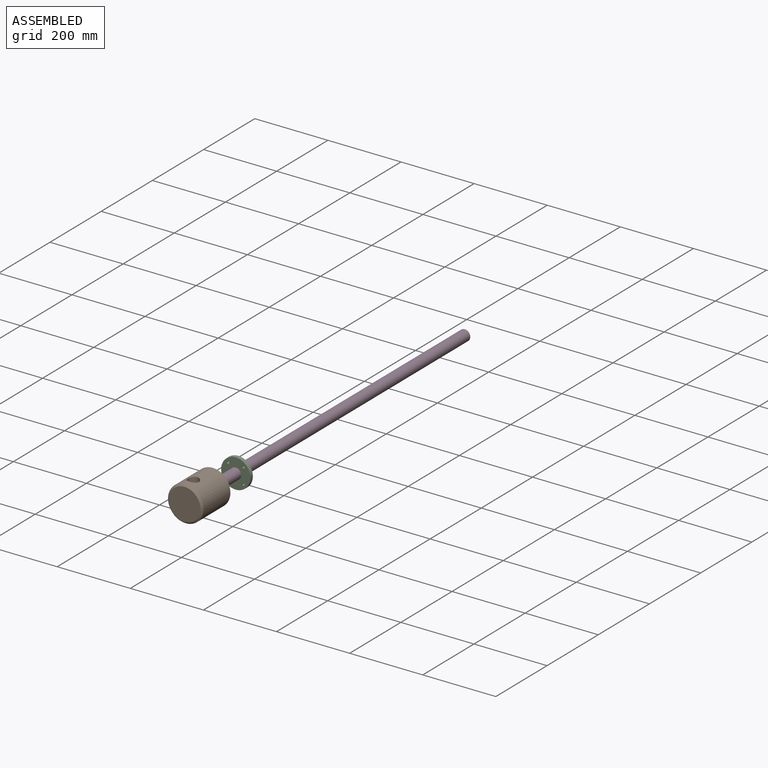
[diagram: assembled view]
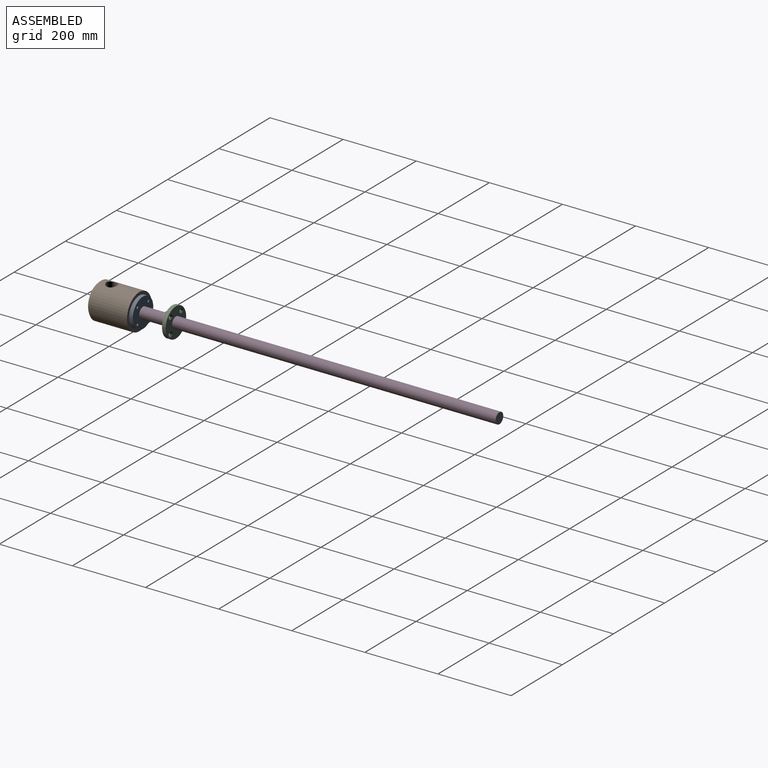
[diagram: assembled view, second angle]
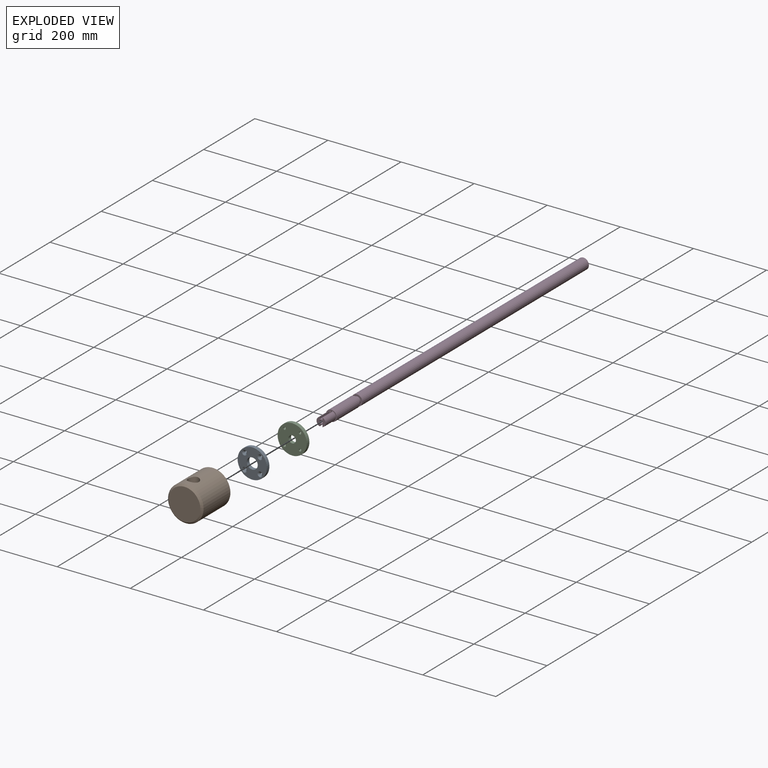
[diagram: exploded view]
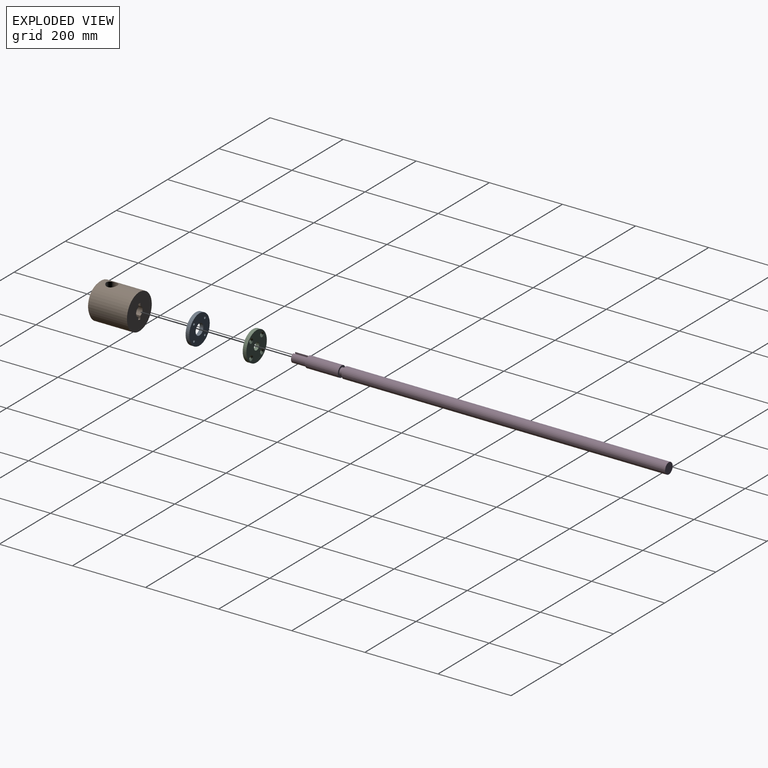
[diagram: exploded view, second angle]
ASSEMBLY  parts=4 mates=3
PART A: 12 faces, bbox 80x10x80 mm
  f0: cylinder r=15mm len=30mm, axis (0,1,0), area 942.5mm2, adj f2,f3
  f1: cylinder r=40mm len=80mm, axis (0,1,0), area 2513.3mm2, adj f2,f3
  f2: plane 80x80mm, normal (0,-1,0), area 3729.2mm2, adj f0,f1,f5,f7,f9,f11
  f3: plane 80x80mm, normal (0,1,0), area 4182.8mm2, adj f0,f1,f4,f6,f8,f10
  f4: cylinder r=3.3mm len=6.6mm, axis (0,-1,0), area 133.6mm2, adj f3,f5
  f5: cone r=3.3mm half-angle=45deg, axis (0,-1,0), area 160.4mm2, adj f2,f4
  f6: cylinder r=3.3mm len=6.6mm, axis (0,-1,0), area 133.6mm2, adj f3,f7
  f7: cone r=3.3mm half-angle=45deg, axis (0,-1,0), area 160.4mm2, adj f2,f6
  f8: cylinder r=3.3mm len=6.6mm, axis (0,-1,0), area 133.6mm2, adj f3,f9
  f9: cone r=3.3mm half-angle=45deg, axis (0,-1,0), area 160.4mm2, adj f2,f8
  f10: cylinder r=3.3mm len=6.6mm, axis (0,-1,0), area 133.6mm2, adj f3,f11
  f11: cone r=3.3mm half-angle=45deg, axis (0,-1,0), area 160.4mm2, adj f2,f10
PART B: 15 faces, bbox 97x110x97 mm
  f0: plane 97x97mm, normal (0,1,0), area 6775.5mm2, adj f1,f2,f7,f9,f10,f11,f12,f13
  f1: cylinder r=12.5mm len=45mm, axis (0,1,0), area 1400.7mm2, adj f0,f6,f10,f13
  f2: cylinder r=48.5mm len=105mm, axis (0,1,0), area 30566mm2, adj f0,f5,f8
  f3: cylinder r=5mm len=15.86mm, axis (0,1,0), area 484.6mm2, adj f6,f8
  f4: plane 87x87mm, normal (0,-1,0), area 5944.7mm2, adj f5
  f5: cone r=43.5mm half-angle=45deg, axis (0,1,0), area 2043.7mm2, adj f2,f4
  f6: plane 40x25mm, normal (0,1,0), area 535.8mm2, adj f1,f3,f7,f9,f10,f11,f12,f13
  f7: cylinder r=12.5mm len=45mm, axis (0,1,0), area 1400.7mm2, adj f0,f6,f9,f12
  f8: cylinder r=15mm len=97mm, axis (0,0,-1), area 8839.6mm2, adj f2,f3
  f9: plane 45x8.16mm, normal (-1,0,0), area 367.1mm2, adj f0,f6,f7,f11
  f10: plane 45x8.16mm, normal (1,0,0), area 367.1mm2, adj f0,f1,f6,f11
  f11: plane 45x8mm, normal (0,0,-1), area 360mm2, adj f0,f6,f9,f10
  f12: plane 45x8.16mm, normal (-1,0,0), area 367.1mm2, adj f0,f6,f7,f14
  f13: plane 45x8.16mm, normal (1,0,0), area 367.1mm2, adj f0,f1,f6,f14
  f14: plane 45x8mm, normal (0,0,1), area 360mm2, adj f0,f6,f12,f13
PART C: 12 faces, bbox 80x10x80 mm
  f0: cylinder r=40mm len=80mm, axis (0,1,0), area 2513.3mm2, adj f1,f2
  f1: plane 80x80mm, normal (0,-1,0), area 4121.9mm2, adj f0,f4,f6,f8,f10,f11
  f2: plane 80x80mm, normal (0,1,0), area 4575.5mm2, adj f0,f3,f5,f7,f9,f11
  f3: cylinder r=3.3mm len=6.6mm, axis (0,-1,0), area 133.6mm2, adj f2,f4
  f4: cone r=3.3mm half-angle=45deg, axis (0,-1,0), area 160.4mm2, adj f1,f3
  f5: cylinder r=3.3mm len=6.6mm, axis (0,-1,0), area 133.6mm2, adj f2,f6
  f6: cone r=3.3mm half-angle=45deg, axis (0,-1,0), area 160.4mm2, adj f1,f5
  f7: cylinder r=3.3mm len=6.6mm, axis (0,-1,0), area 133.6mm2, adj f2,f8
  f8: cone r=3.3mm half-angle=45deg, axis (0,-1,0), area 160.4mm2, adj f1,f7
  f9: cylinder r=3.3mm len=6.6mm, axis (0,-1,0), area 133.6mm2, adj f2,f10
  f10: cone r=3.3mm half-angle=45deg, axis (0,-1,0), area 160.4mm2, adj f1,f9
  f11: cylinder r=10mm len=20mm, axis (0,-1,0), area 628.3mm2, adj f1,f2
PART D: 20 faces, bbox 30x1025x30 mm
  f0: cylinder r=12.5mm len=40mm, axis (0,-1,0), area 1252.2mm2, adj f2,f4,f9,f13,f18,f19
  f1: cylinder r=12.5mm len=40mm, axis (0,-1,0), area 1252.2mm2, adj f2,f4,f11,f14,f18,f19
  f2: plane 25x23.69mm, normal (0,-1,0), area 326.7mm2, adj f0,f1,f9,f10,f11,f12,f13,f14
  f3: cylinder r=15mm len=90mm, axis (0,1,0), area 8482.3mm2, adj f4,f7
  f4: plane 30x30mm, normal (0,-1,0), area 216mm2, adj f0,f1,f3
  f5: cylinder r=10mm len=20mm, axis (0,-1,0), area 628.3mm2, adj f6,f7
  f6: plane 30x30mm, normal (0,-1,0), area 392.7mm2, adj f5,f8
  f7: plane 30x30mm, normal (0,1,0), area 392.7mm2, adj f3,f5
  f8: cylinder r=15mm len=885mm, axis (0,1,0), area 83409.3mm2, adj f6,f17
  f9: plane 36x5.84mm, normal (-1,0,0), area 210.3mm2, adj f0,f2,f10,f18
  f10: plane 40x8mm, normal (0,0,-1), area 313.1mm2, adj f2,f9,f11,f18
  f11: plane 36x5.84mm, normal (1,0,0), area 210.3mm2, adj f1,f2,f10,f18
  f12: plane 40x8mm, normal (0,0,1), area 313.1mm2, adj f2,f13,f14,f19
  f13: plane 36x5.84mm, normal (-1,0,0), area 210.3mm2, adj f0,f2,f12,f19
  f14: plane 36x5.84mm, normal (1,0,0), area 210.3mm2, adj f1,f2,f12,f19
  f15: cone r=0mm half-angle=59deg, axis (0,-1,0), area 74.2mm2, adj f16
  f16: cylinder r=4.5mm len=40mm, axis (0,-1,0), area 1131mm2, adj f2,f15
  f17: plane 30x30mm, normal (0,1,0), area 706.9mm2, adj f8
  f18: cylinder r=4mm len=8mm, axis (0,0,-1), area 77.6mm2, adj f0,f1,f9,f10,f11
  f19: cylinder r=4mm len=8mm, axis (0,0,1), area 77.6mm2, adj f0,f1,f12,f13,f14
PLACE A t=(-475.65,-359.99,-225.64)mm
PLACE B t=(-475.65,-369.99,-225.64)mm
PLACE C rot(axis=(1,0,0),180deg) t=(-475.65,-279.99,-225.64)mm
PLACE D t=(-475.65,590.01,-225.64)mm
MATE fastened D.f5 <-> C.f11  axis (0,1,0) through (-475.65,-279.99,-225.64)mm
MATE fastened B.f2 <-> D.f15  axis (0,1,0) through (-475.65,-369.99,-225.64)mm
MATE fastened B.f2 <-> A.f1  axis (0,1,0) through (-475.65,-369.99,-225.64)mm
